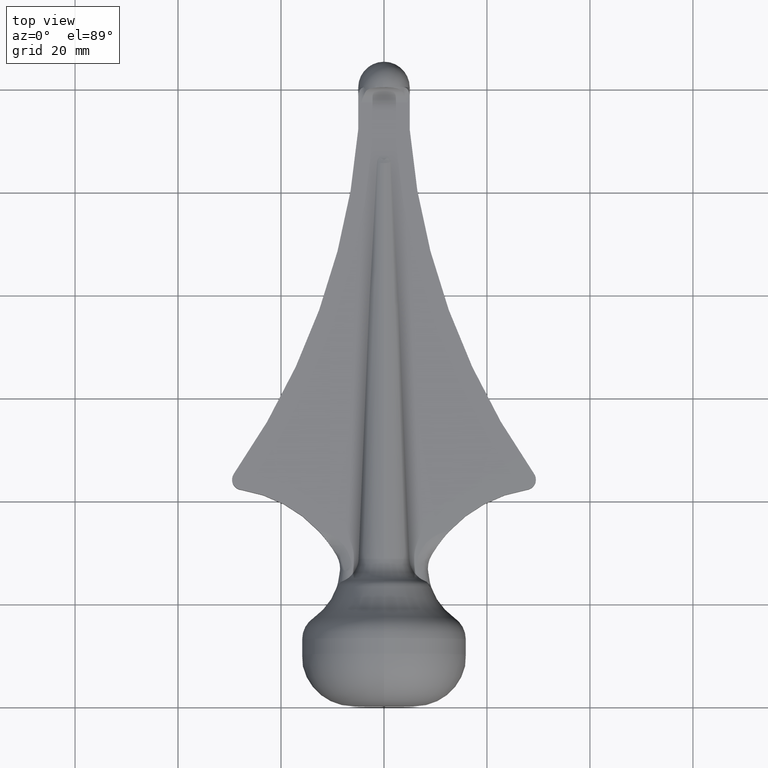
[diagram: clean part render]
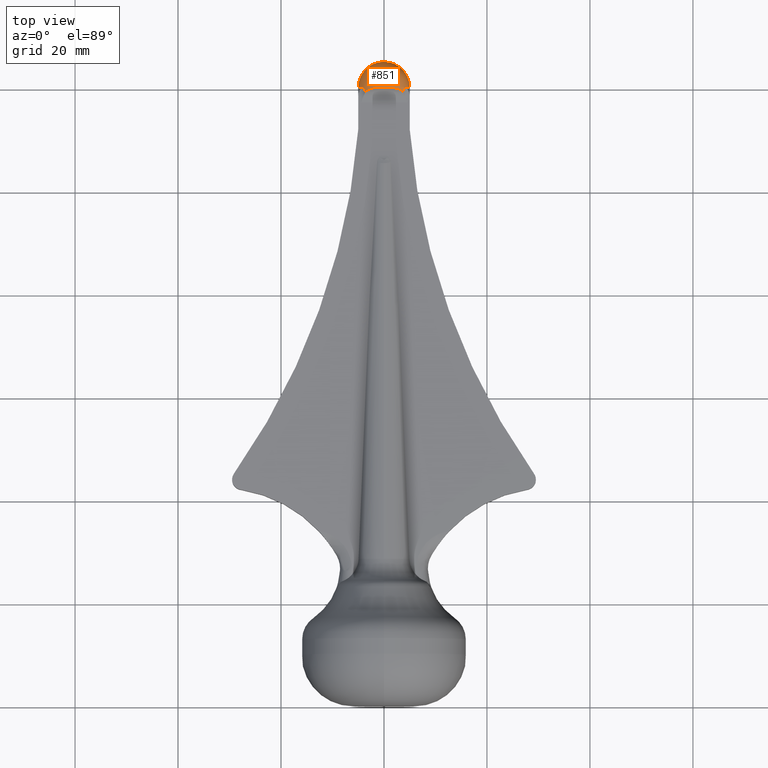
[diagram: same view with one face highlighted and labeled with its STEP entity id]
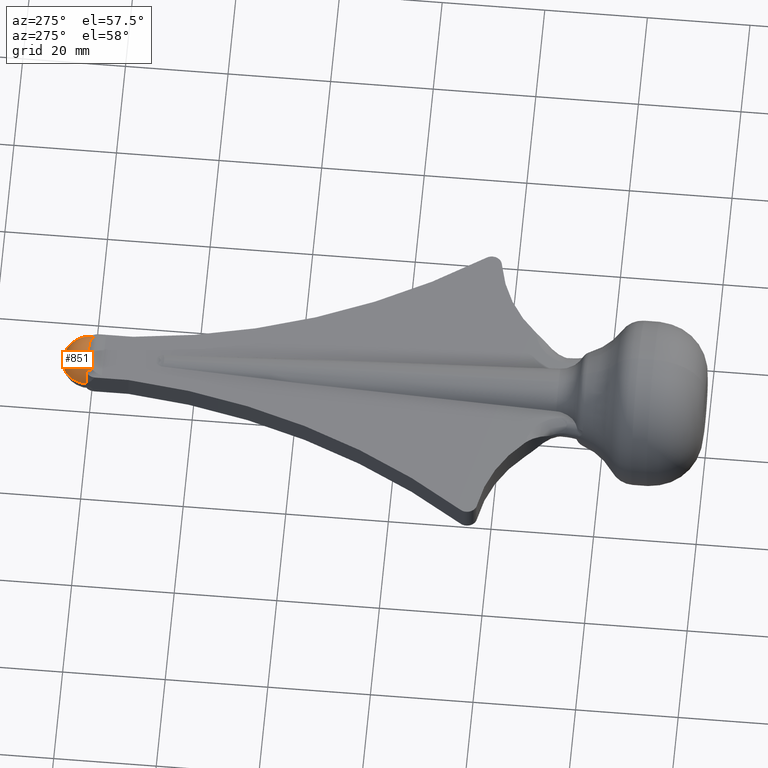
[diagram: same view with one face highlighted and labeled with its STEP entity id]
A machine part, top view. The second image highlights one B-rep face of the part: STEP entity #851.
A second angle (auxiliary view) of the same face is appended — the face is thin or edge-on in the first view.
In plain terms, the highlighted spherical surface has radius 5 mm.
Its self-contained STEP definition (entity closure, byte-faithful):
#4 = B_SPLINE_CURVE_WITH_KNOTS ( 'NONE', 3,
 ( #6335, #6282, #6330, #6223, #6319, #6306, #6294, #6261, #6252, #6292, #6279, #6249, #6215, #6240, #6238, #6210, #6183, #6198, #6195, #6137, #6177, #6171, #6159, #6157 ),
 .UNSPECIFIED., .F., .F.,
 ( 4, 2, 2, 2, 2, 2, 2, 2, 2, 2, 2, 4 ),
 ( -0.004069811084701881400, -0.003512193934037092700, -0.002954576783372304100, -0.002396959632707515400, -0.001839342482042725900, -0.0007241081807131464900, 0.0003911261206164329600, 0.001506360421946012800, 0.002621594723275591900, 0.003736829024605172600, 0.004294446175269961200, 0.004852063325934752500 ),
 .UNSPECIFIED. ) ;
#267 = VERTEX_POINT ( 'NONE', #6994 ) ;
#392 = CIRCLE ( 'NONE', #5631, 5.000000000000002700 ) ;
#406 = EDGE_CURVE ( 'NONE', #6515, #4190, #3941, .T. ) ;
#560 = EDGE_CURVE ( 'NONE', #2953, #10492, #4, .T. ) ;
#851 = ADVANCED_FACE ( 'NONE', ( #8811 ), #10973, .T. ) ;
#997 = EDGE_CURVE ( 'NONE', #6515, #3164, #10202, .T. ) ;
#1781 = CARTESIAN_POINT ( 'NONE',  ( -3.681203666746081000, 119.1430672155362200, 3.214285714287302000 ) ) ;
#1845 = CARTESIAN_POINT ( 'NONE',  ( 0.0000000000000000000, 120.2000000000000000, 0.0000000000000000000 ) ) ;
#2150 = DIRECTION ( 'NONE',  ( 0.0000000000000000000, 0.0000000000000000000, 1.000000000000000000 ) ) ;
#2250 = CIRCLE ( 'NONE', #8761, 3.829930462415579700 ) ;
#2395 = AXIS2_PLACEMENT_3D ( 'NONE', #1845, #3567, #3565 ) ;
#2823 = CARTESIAN_POINT ( 'NONE',  ( 0.0000000000000000000, 120.2000000000000000, 0.0000000000000000000 ) ) ;
#2953 = VERTEX_POINT ( 'NONE', #1781 ) ;
#3164 = VERTEX_POINT ( 'NONE', #10783 ) ;
#3191 = EDGE_LOOP ( 'NONE', ( #6993, #6286, #4468, #5516, #10763, #11296, #6246 ) ) ;
#3305 = VERTEX_POINT ( 'NONE', #3946 ) ;
#3559 = CIRCLE ( 'NONE', #9028, 3.829930462415578800 ) ;
#3565 = DIRECTION ( 'NONE',  ( 1.000000000000000000, 0.0000000000000000000, 0.0000000000000000000 ) ) ;
#3567 = DIRECTION ( 'NONE',  ( 0.0000000000000000000, 0.0000000000000000000, 1.000000000000000000 ) ) ;
#3733 = DIRECTION ( 'NONE',  ( 0.0000000000000000000, 0.0000000000000000000, -1.000000000000000000 ) ) ;
#3827 = DIRECTION ( 'NONE',  ( 0.0000000000000000000, 0.0000000000000000000, 1.000000000000000000 ) ) ;
#3941 = CIRCLE ( 'NONE', #7451, 5.000000000000004400 ) ;
#3946 = CARTESIAN_POINT ( 'NONE',  ( 3.829930462415577900, 120.2000000000000000, 3.214285714285714400 ) ) ;
#4190 = VERTEX_POINT ( 'NONE', #5931 ) ;
#4213 = DIRECTION ( 'NONE',  ( 1.000000000000000000, 0.0000000000000000000, -1.224646799147353500E-016 ) ) ;
#4349 = DIRECTION ( 'NONE',  ( 1.224646799147353200E-016, -0.0000000000000000000, 1.000000000000000000 ) ) ;
#4468 = ORIENTED_EDGE ( 'NONE', *, *, #8760, .F. ) ;
#4513 = CARTESIAN_POINT ( 'NONE',  ( 0.0000000000000000000, 120.2000000000000000, 0.0000000000000000000 ) ) ;
#4821 = DIRECTION ( 'NONE',  ( -0.0000000000000000000, -1.000000000000000000, -0.0000000000000000000 ) ) ;
#5247 = EDGE_CURVE ( 'NONE', #4190, #3305, #6578, .T. ) ;
#5516 = ORIENTED_EDGE ( 'NONE', *, *, #7903, .T. ) ;
#5631 = AXIS2_PLACEMENT_3D ( 'NONE', #2823, #9058, #3733 ) ;
#5931 = CARTESIAN_POINT ( 'NONE',  ( 5.000000000000000000, 120.2000000000000000, 0.0000000000000000000 ) ) ;
#6137 = CARTESIAN_POINT ( 'NONE',  ( 3.201987860754917900, 119.6820097861684500, 3.809732397635104700 ) ) ;
#6157 = CARTESIAN_POINT ( 'NONE',  ( 3.681203666745291900, 119.1430672155336300, 3.214285714285716200 ) ) ;
#6159 = CARTESIAN_POINT ( 'NONE',  ( 3.619635294230207000, 119.2783372700727400, 3.329277692881213100 ) ) ;
#6171 = CARTESIAN_POINT ( 'NONE',  ( 3.532501973854102600, 119.3971342794841800, 3.451364423571979100 ) ) ;
#6177 = CARTESIAN_POINT ( 'NONE',  ( 3.324914135388736400, 119.5976549902269000, 3.690149919211199900 ) ) ;
#6179 = CARTESIAN_POINT ( 'NONE',  ( 3.061616997868386100E-016, 125.2000000000000000, 0.0000000000000000000 ) ) ;
#6183 = CARTESIAN_POINT ( 'NONE',  ( 1.828497768867186800, 120.0870190163236200, 4.667030279079889400 ) ) ;
#6195 = CARTESIAN_POINT ( 'NONE',  ( 2.802594249669346100, 119.8900465001443900, 4.146058194743294400 ) ) ;
#6198 = CARTESIAN_POINT ( 'NONE',  ( 2.487658030682962100, 119.9748485752124200, 4.347206548758402200 ) ) ;
#6210 = CARTESIAN_POINT ( 'NONE',  ( 1.479456534269666600, 120.1160751968907200, 4.790165839815116100 ) ) ;
#6215 = CARTESIAN_POINT ( 'NONE',  ( -0.3683358700316471400, 120.1580660785758100, 5.000154835034464900 ) ) ;
#6223 = CARTESIAN_POINT ( 'NONE',  ( -3.324136806479506500, 119.5983602343713100, 3.691015222612863400 ) ) ;
#6238 = CARTESIAN_POINT ( 'NONE',  ( 0.7468865555920812800, 120.1518725917543400, 4.957960065183376800 ) ) ;
#6240 = CARTESIAN_POINT ( 'NONE',  ( 0.3772592669593197200, 120.1579534130097600, 4.999488540966195800 ) ) ;
#6246 = ORIENTED_EDGE ( 'NONE', *, *, #5247, .F. ) ;
#6249 = CARTESIAN_POINT ( 'NONE',  ( -0.7448114382389292600, 120.1518584929448500, 4.958048823754499100 ) ) ;
#6252 = CARTESIAN_POINT ( 'NONE',  ( -2.325258680029661700, 120.0024271857542900, 4.425917896147336900 ) ) ;
#6261 = CARTESIAN_POINT ( 'NONE',  ( -2.484953166936735100, 119.9673576804412000, 4.336603425691445000 ) ) ;
#6279 = CARTESIAN_POINT ( 'NONE',  ( -1.471805749528554100, 120.1165630206352800, 4.792299649238937100 ) ) ;
#6282 = CARTESIAN_POINT ( 'NONE',  ( -3.619592110184634200, 119.2784321484642600, 3.329358348234235300 ) ) ;
#6286 = ORIENTED_EDGE ( 'NONE', *, *, #997, .T. ) ;
#6292 = CARTESIAN_POINT ( 'NONE',  ( -1.829017761389361700, 120.0870439527104300, 4.666945857579766400 ) ) ;
#6294 = CARTESIAN_POINT ( 'NONE',  ( -2.791441938851626900, 119.8761357876522000, 4.139831860887344600 ) ) ;
#6306 = CARTESIAN_POINT ( 'NONE',  ( -2.936992006149037300, 119.8201090574323300, 4.032936497477918700 ) ) ;
#6319 = CARTESIAN_POINT ( 'NONE',  ( -3.202089511578721100, 119.6818886346904800, 3.809593067256974700 ) ) ;
#6330 = CARTESIAN_POINT ( 'NONE',  ( -3.532861991401222500, 119.3968320486049200, 3.450979090186112200 ) ) ;
#6335 = CARTESIAN_POINT ( 'NONE',  ( -3.681203666746081000, 119.1430672155362200, 3.214285714287302000 ) ) ;
#6515 = VERTEX_POINT ( 'NONE', #6179 ) ;
#6578 = CIRCLE ( 'NONE', #7233, 5.000000000000002700 ) ;
#6752 = DIRECTION ( 'NONE',  ( -1.000000000000000000, 0.0000000000000000000, 0.0000000000000000000 ) ) ;
#6755 = DIRECTION ( 'NONE',  ( 0.0000000000000000000, 0.0000000000000000000, -1.000000000000000000 ) ) ;
#6768 = CARTESIAN_POINT ( 'NONE',  ( 0.0000000000000000000, 120.2000000000000000, 0.0000000000000000000 ) ) ;
#6993 = ORIENTED_EDGE ( 'NONE', *, *, #406, .F. ) ;
#6994 = CARTESIAN_POINT ( 'NONE',  ( -3.829930462415578800, 120.2000000000000000, 3.214285714285715700 ) ) ;
#7233 = AXIS2_PLACEMENT_3D ( 'NONE', #10028, #4821, #10852 ) ;
#7451 = AXIS2_PLACEMENT_3D ( 'NONE', #6768, #6755, #6752 ) ;
#7556 = CARTESIAN_POINT ( 'NONE',  ( 0.0000000000000000000, 120.2000000000000000, 3.214285714285716200 ) ) ;
#7903 = EDGE_CURVE ( 'NONE', #267, #2953, #3559, .T. ) ;
#8467 = DIRECTION ( 'NONE',  ( -1.000000000000000000, 0.0000000000000000000, 0.0000000000000000000 ) ) ;
#8760 = EDGE_CURVE ( 'NONE', #267, #3164, #392, .T. ) ;
#8761 = AXIS2_PLACEMENT_3D ( 'NONE', #9140, #3827, #9962 ) ;
#8808 = CARTESIAN_POINT ( 'NONE',  ( 3.681203666745291900, 119.1430672155336300, 3.214285714285716200 ) ) ;
#8811 = FACE_OUTER_BOUND ( 'NONE', #3191, .T. ) ;
#8989 = AXIS2_PLACEMENT_3D ( 'NONE', #4513, #4349, #4213 ) ;
#9028 = AXIS2_PLACEMENT_3D ( 'NONE', #7556, #2150, #8467 ) ;
#9058 = DIRECTION ( 'NONE',  ( -0.0000000000000000000, -1.000000000000000000, -0.0000000000000000000 ) ) ;
#9140 = CARTESIAN_POINT ( 'NONE',  ( 0.0000000000000000000, 120.2000000000000000, 3.214285714285715700 ) ) ;
#9962 = DIRECTION ( 'NONE',  ( -1.000000000000000000, 0.0000000000000000000, 0.0000000000000000000 ) ) ;
#10010 = EDGE_CURVE ( 'NONE', #10492, #3305, #2250, .T. ) ;
#10028 = CARTESIAN_POINT ( 'NONE',  ( 0.0000000000000000000, 120.2000000000000000, 0.0000000000000000000 ) ) ;
#10202 = CIRCLE ( 'NONE', #8989, 5.000000000000004400 ) ;
#10492 = VERTEX_POINT ( 'NONE', #8808 ) ;
#10763 = ORIENTED_EDGE ( 'NONE', *, *, #560, .T. ) ;
#10783 = CARTESIAN_POINT ( 'NONE',  ( -5.000000000000000000, 120.2000000000000000, 0.0000000000000000000 ) ) ;
#10852 = DIRECTION ( 'NONE',  ( 0.0000000000000000000, 0.0000000000000000000, -1.000000000000000000 ) ) ;
#10973 = SPHERICAL_SURFACE ( 'NONE', #2395, 5.000000000000004400 ) ;
#11296 = ORIENTED_EDGE ( 'NONE', *, *, #10010, .T. ) ;